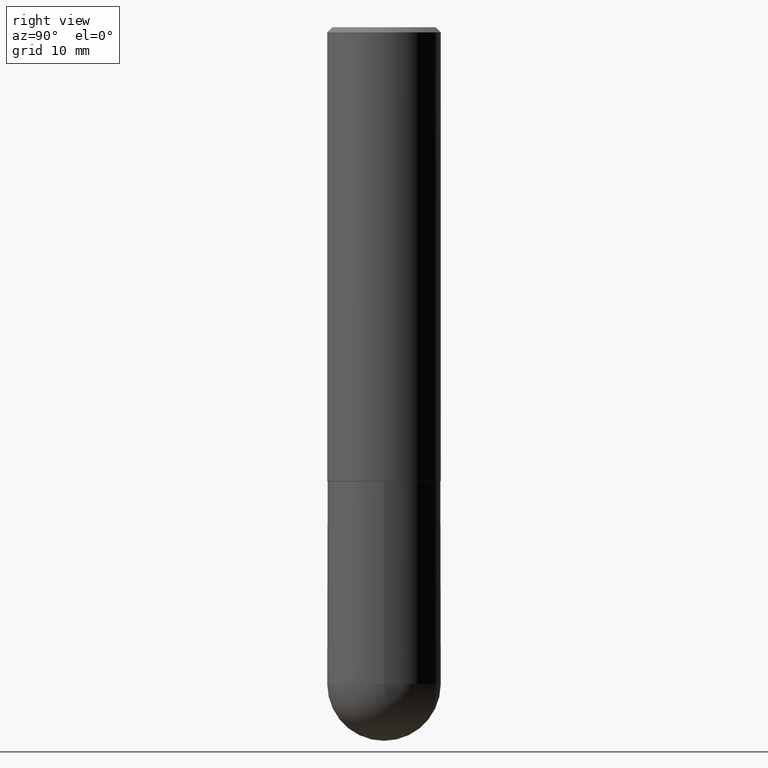
[diagram: clean part render]
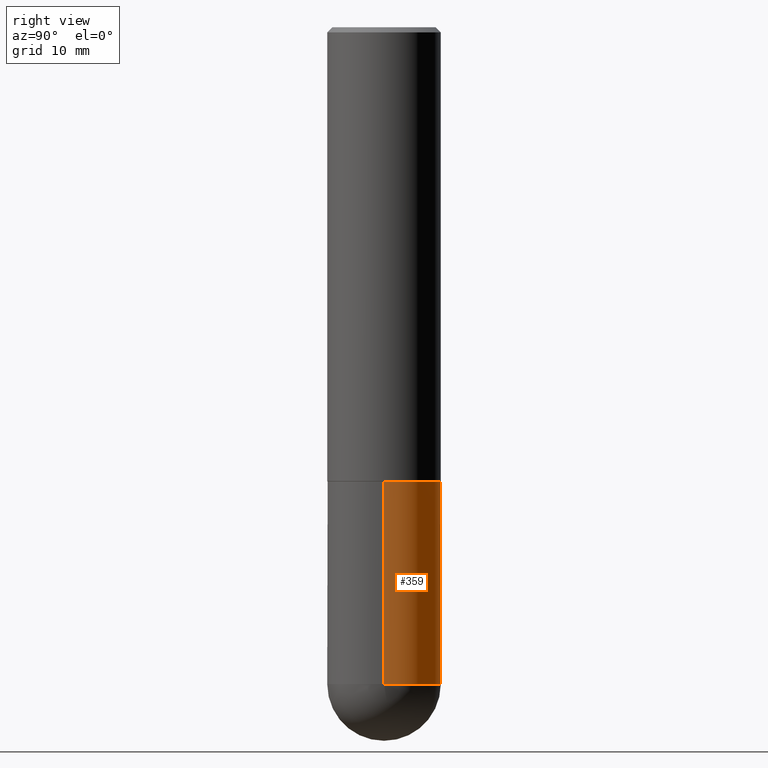
[diagram: same view with one face highlighted and labeled with its STEP entity id]
A machine part, right view. The second image highlights one B-rep face of the part: STEP entity #359.
In plain terms, the highlighted cylindrical surface (partial cylindrical patch) has radius 5.5562 mm, axis along (-0, 0, 1).
Its self-contained STEP definition (entity closure, byte-faithful):
#10 = DIRECTION ( 'NONE',  ( 1.000000000000000000, -6.982962677686266711E-15, 4.876176775795935232E-29 ) ) ;
#11 = DIRECTION ( 'NONE',  ( -2.445468806185136597E-29, 3.491481338843145583E-15, 1.000000000000000000 ) ) ;
#31 = CARTESIAN_POINT ( 'NONE',  ( -0.2187499999999999445, 1.554312234475218762E-15, -1.076017050993260482E-29 ) ) ;
#36 = AXIS2_PLACEMENT_3D ( 'NONE', #304, #332, #207 ) ;
#42 = CARTESIAN_POINT ( 'NONE',  ( 0.2187499999999999445, -1.527523085743870449E-15, 1.066663669705360604E-29 ) ) ;
#51 = LINE ( 'NONE', #42, #129 ) ;
#67 = VERTEX_POINT ( 'NONE', #240 ) ;
#68 = FACE_OUTER_BOUND ( 'NONE', #393, .T. ) ;
#71 = AXIS2_PLACEMENT_3D ( 'NONE', #195, #11, #213 ) ;
#81 = DIRECTION ( 'NONE',  ( 1.000000000000000000, -6.982962677686267499E-15, 0.000000000000000000 ) ) ;
#83 = LINE ( 'NONE', #31, #321 ) ;
#101 = CARTESIAN_POINT ( 'NONE',  ( 0.2187500000000000000, -7.637615428719375514E-15, -1.750000000000000000 ) ) ;
#111 = ORIENTED_EDGE ( 'NONE', *, *, #269, .T. ) ;
#114 = CARTESIAN_POINT ( 'NONE',  ( 0.2187499999999999445, -9.001475326704980594E-15, -2.531250000000000000 ) ) ;
#116 = DIRECTION ( 'NONE',  ( -2.445468806185136877E-29, 3.491481338843145188E-15, 1.000000000000000000 ) ) ;
#126 = CIRCLE ( 'NONE', #175, 0.2187500000000000000 ) ;
#129 = VECTOR ( 'NONE', #167, 39.37007874015748143 ) ;
#134 = CYLINDRICAL_SURFACE ( 'NONE', #220, 0.2187499999999999445 ) ;
#157 = EDGE_CURVE ( 'NONE', #254, #257, #83, .T. ) ;
#167 = DIRECTION ( 'NONE',  ( -2.445468806185136877E-29, 3.491481338843145188E-15, 1.000000000000000000 ) ) ;
#170 = DIRECTION ( 'NONE',  ( -2.445468806185136597E-29, 3.491481338843145583E-15, 1.000000000000000000 ) ) ;
#175 = AXIS2_PLACEMENT_3D ( 'NONE', #296, #170, #81 ) ;
#176 = DIRECTION ( 'NONE',  ( -2.445468806185136597E-29, 3.491481338843145583E-15, 1.000000000000000000 ) ) ;
#191 = CIRCLE ( 'NONE', #36, 0.2187499999999999445 ) ;
#193 = ORIENTED_EDGE ( 'NONE', *, *, #403, .T. ) ;
#195 = CARTESIAN_POINT ( 'NONE',  ( 6.190092915656127011E-29, -8.837812138946710888E-15, -2.531250000000000000 ) ) ;
#207 = DIRECTION ( 'NONE',  ( 1.000000000000000000, -6.982962677686265133E-15, 0.000000000000000000 ) ) ;
#213 = DIRECTION ( 'NONE',  ( 1.000000000000000000, -6.982962677686265133E-15, 0.000000000000000000 ) ) ;
#220 = AXIS2_PLACEMENT_3D ( 'NONE', #295, #176, #10 ) ;
#227 = VERTEX_POINT ( 'NONE', #114 ) ;
#236 = ORIENTED_EDGE ( 'NONE', *, *, #282, .F. ) ;
#240 = CARTESIAN_POINT ( 'NONE',  ( 1.527523085743931191E-15, 0.2187499999999910072, -2.531250000000000444 ) ) ;
#254 = VERTEX_POINT ( 'NONE', #270 ) ;
#255 = CIRCLE ( 'NONE', #71, 0.2187499999999999445 ) ;
#257 = VERTEX_POINT ( 'NONE', #404 ) ;
#269 = EDGE_CURVE ( 'NONE', #227, #67, #255, .T. ) ;
#270 = CARTESIAN_POINT ( 'NONE',  ( -0.2187499999999999445, -5.919640006485891384E-15, -2.531250000000000000 ) ) ;
#282 = EDGE_CURVE ( 'NONE', #227, #391, #51, .T. ) ;
#295 = CARTESIAN_POINT ( 'NONE',  ( 0.000000000000000000, 0.000000000000000000, 0.000000000000000000 ) ) ;
#296 = CARTESIAN_POINT ( 'NONE',  ( 4.279570410823988484E-29, -6.110092342975504671E-15, -1.750000000000000000 ) ) ;
#299 = EDGE_CURVE ( 'NONE', #391, #257, #126, .T. ) ;
#304 = CARTESIAN_POINT ( 'NONE',  ( 6.190092915656127011E-29, -8.837812138946710888E-15, -2.531250000000000000 ) ) ;
#321 = VECTOR ( 'NONE', #116, 39.37007874015748143 ) ;
#332 = DIRECTION ( 'NONE',  ( -2.445468806185136597E-29, 3.491481338843145583E-15, 1.000000000000000000 ) ) ;
#359 = ADVANCED_FACE ( 'NONE', ( #68 ), #134, .T. ) ;
#386 = ORIENTED_EDGE ( 'NONE', *, *, #157, .T. ) ;
#388 = ORIENTED_EDGE ( 'NONE', *, *, #299, .F. ) ;
#391 = VERTEX_POINT ( 'NONE', #101 ) ;
#393 = EDGE_LOOP ( 'NONE', ( #193, #386, #388, #236, #111 ) ) ;
#403 = EDGE_CURVE ( 'NONE', #67, #254, #191, .T. ) ;
#404 = CARTESIAN_POINT ( 'NONE',  ( -0.2187500000000000000, -5.919640006485889806E-15, -1.750000000000000000 ) ) ;